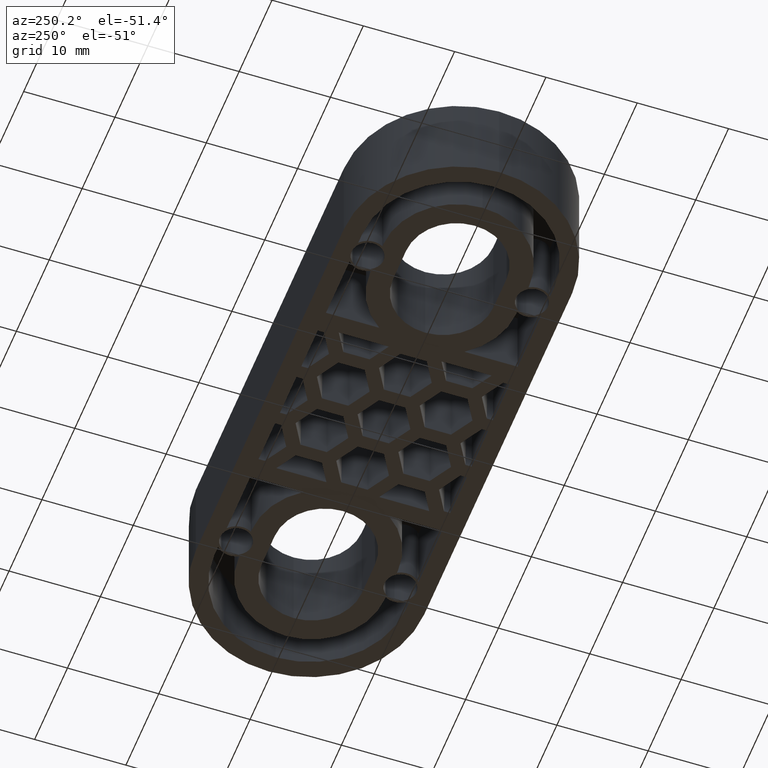
[diagram: clean part render]
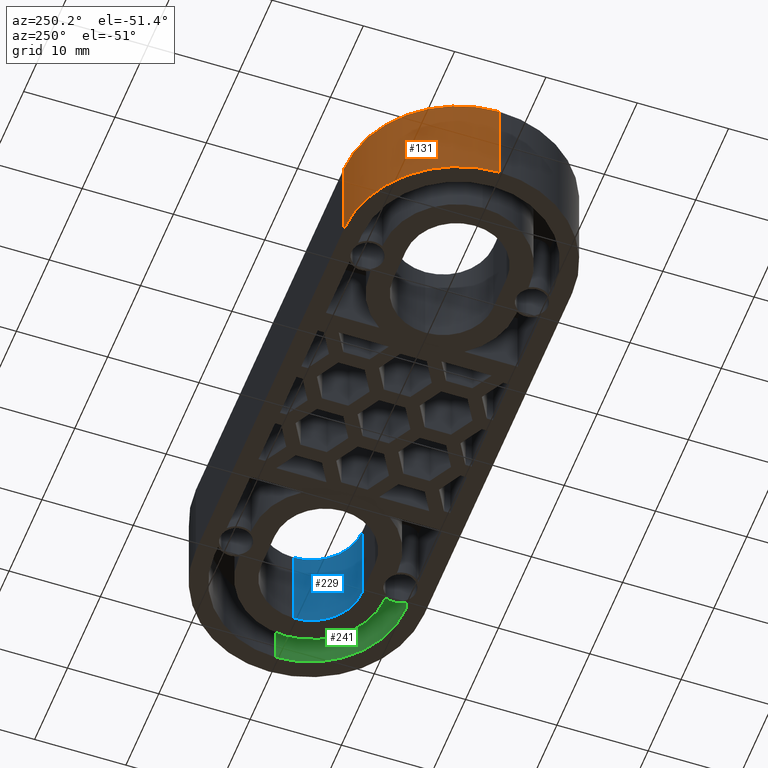
[diagram: same view with three faces highlighted in distinct colors, each labeled with its STEP entity id]
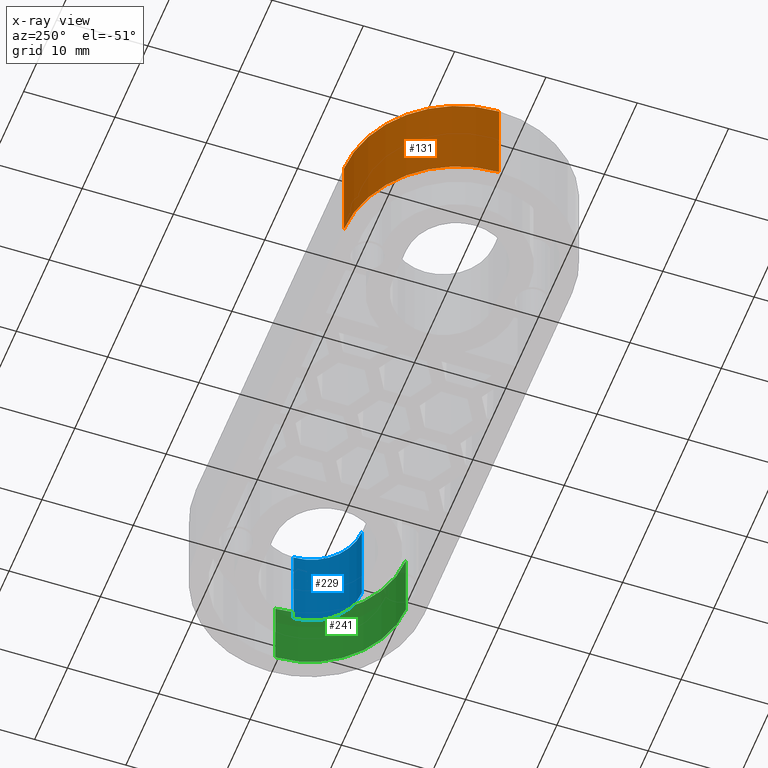
[diagram: x-ray of the same camera — body ghosted, the three highlighted faces saturated]
A machine part, auxiliary view with three faces highlighted in distinct colors.
The next image is the same camera in x-ray (body ghosted, the three faces saturated) — at least one of them is partly hidden behind the body in this view.
Their STEP definitions:

[orange] entity #131 — the highlighted cylindrical surface (partial cylindrical patch) has radius 12.5 mm, axis along (-0, -0, -1).
#131 = ADVANCED_FACE( '', ( #442 ), #443, .T. );
#442 = FACE_OUTER_BOUND( '', #918, .T. );
#443 = CYLINDRICAL_SURFACE( '', #919, 12.5000000000000 );
#918 = EDGE_LOOP( '', ( #1856, #1857, #1858, #1859 ) );
#919 = AXIS2_PLACEMENT_3D( '', #1860, #1861, #1862 );
#1856 = ORIENTED_EDGE( '', *, *, #2973, .T. );
#1857 = ORIENTED_EDGE( '', *, *, #3334, .F. );
#1858 = ORIENTED_EDGE( '', *, *, #3191, .F. );
#1859 = ORIENTED_EDGE( '', *, *, #3333, .T. );
#1860 = CARTESIAN_POINT( '', ( -23.2500000000000, 0.00254079757291536, -4.33053919918789E-016 ) );
#1861 = DIRECTION( '', ( -5.60519385729927E-049, -6.12303176911189E-017, -1.00000000000000 ) );
#1862 = DIRECTION( '', ( -1.00000000000000, -6.12303176911189E-017, 3.74915180455534E-033 ) );
#2973 = EDGE_CURVE( '', #3521, #3519, #3522, .T. );
#3191 = EDGE_CURVE( '', #3917, #3919, #3920, .T. );
#3333 = EDGE_CURVE( '', #3917, #3521, #4180, .T. );
#3334 = EDGE_CURVE( '', #3919, #3519, #4181, .T. );
#3519 = VERTEX_POINT( '', #4424 );
#3521 = VERTEX_POINT( '', #4427 );
#3522 = CIRCLE( '', #4428, 12.5000000000000 );
#3917 = VERTEX_POINT( '', #4974 );
#3919 = VERTEX_POINT( '', #4976 );
#3920 = CIRCLE( '', #4977, 12.5000000000000 );
#4180 = LINE( '', #5374, #5375 );
#4181 = LINE( '', #5376, #5377 );
#4424 = CARTESIAN_POINT( '', ( -23.2500000000000, 12.5025407975729, 9.99999999999999 ) );
#4427 = CARTESIAN_POINT( '', ( -35.7500000000000, 0.00254079757291276, 9.99999999999999 ) );
#4428 = AXIS2_PLACEMENT_3D( '', #5751, #5752, #5753 );
#4974 = CARTESIAN_POINT( '', ( -35.7500000000000, 0.00254079757291189, -4.33053919918789E-016 ) );
#4976 = CARTESIAN_POINT( '', ( -23.2500000000000, 12.5025407975729, -1.19843289105777E-015 ) );
#4977 = AXIS2_PLACEMENT_3D( '', #6103, #6104, #6105 );
#5374 = CARTESIAN_POINT( '', ( -35.7500000000000, 0.00254079757291189, -4.33053919918789E-016 ) );
#5375 = VECTOR( '', #6255, 1000.00000000000 );
#5376 = CARTESIAN_POINT( '', ( -23.2500000000000, 12.5025407975729, -1.19843289105777E-015 ) );
#5377 = VECTOR( '', #6256, 1000.00000000000 );
#5751 = CARTESIAN_POINT( '', ( -23.2500000000000, 0.00254079757291623, 9.99999999999999 ) );
#5752 = DIRECTION( '', ( -5.60519385729927E-049, -6.12303176911189E-017, -1.00000000000000 ) );
#5753 = DIRECTION( '', ( -6.12303176911189E-017, 1.00000000000000, -6.12303176911189E-017 ) );
#6103 = CARTESIAN_POINT( '', ( -23.2500000000000, 0.00254079757291536, -4.33053919918789E-016 ) );
#6104 = DIRECTION( '', ( -5.60519385729927E-049, -6.12303176911189E-017, -1.00000000000000 ) );
#6105 = DIRECTION( '', ( -6.12303176911189E-017, 1.00000000000000, -6.12303176911189E-017 ) );
#6255 = DIRECTION( '', ( 0.000000000000000, 6.12303176911189E-017, 1.00000000000000 ) );
#6256 = DIRECTION( '', ( 0.000000000000000, 6.12303176911189E-017, 1.00000000000000 ) );

[blue] entity #229 — the highlighted cylindrical surface (partial cylindrical patch) has radius 5.5 mm, axis along (-0, -0, -1).
#229 = ADVANCED_FACE( '', ( #640 ), #641, .F. );
#640 = FACE_OUTER_BOUND( '', #1116, .T. );
#641 = CYLINDRICAL_SURFACE( '', #1117, 5.50000000000000 );
#1116 = EDGE_LOOP( '', ( #2538, #2539, #2540, #2541 ) );
#1117 = AXIS2_PLACEMENT_3D( '', #2542, #2543, #2544 );
#2538 = ORIENTED_EDGE( '', *, *, #3430, .F. );
#2539 = ORIENTED_EDGE( '', *, *, #3235, .F. );
#2540 = ORIENTED_EDGE( '', *, *, #3434, .T. );
#2541 = ORIENTED_EDGE( '', *, *, #2987, .F. );
#2542 = CARTESIAN_POINT( '', ( 21.2500000000000, 0.00254079757291883, -9.99999999516950E-006 ) );
#2543 = DIRECTION( '', ( -1.44762238050085E-048, -6.12303176911189E-017, -1.00000000000000 ) );
#2544 = DIRECTION( '', ( -1.15648231731787E-016, 1.00000000000000, -6.12303176911189E-017 ) );
#2987 = EDGE_CURVE( '', #3547, #3549, #3550, .F. );
#3235 = EDGE_CURVE( '', #4006, #4007, #4008, .T. );
#3430 = EDGE_CURVE( '', #4007, #3547, #4297, .T. );
#3434 = EDGE_CURVE( '', #4006, #3549, #4301, .T. );
#3547 = VERTEX_POINT( '', #4457 );
#3549 = VERTEX_POINT( '', #4459 );
#3550 = CIRCLE( '', #4460, 5.50000000000000 );
#4006 = VERTEX_POINT( '', #5106 );
#4007 = VERTEX_POINT( '', #5107 );
#4008 = CIRCLE( '', #5108, 5.50000000000000 );
#4297 = LINE( '', #5586, #5587 );
#4301 = LINE( '', #5594, #5595 );
#4457 = CARTESIAN_POINT( '', ( 26.7500000000000, 0.00254079757291970, 9.99999999999999 ) );
#4459 = CARTESIAN_POINT( '', ( 21.2500000000000, -5.49745920242708, 9.99999999999999 ) );
#4460 = AXIS2_PLACEMENT_3D( '', #5785, #5786, #5787 );
#5106 = CARTESIAN_POINT( '', ( 21.2500000000000, -5.49745920242708, -9.99999999483273E-006 ) );
#5107 = CARTESIAN_POINT( '', ( 26.7500000000000, 0.00254079757291970, -9.99999999516950E-006 ) );
#5108 = AXIS2_PLACEMENT_3D( '', #6149, #6150, #6151 );
#5586 = CARTESIAN_POINT( '', ( 26.7500000000000, 0.00254079757291970, -9.99999999516950E-006 ) );
#5587 = VECTOR( '', #6356, 1000.00000000000 );
#5594 = CARTESIAN_POINT( '', ( 21.2500000000000, -5.49745920242708, -9.99999999483273E-006 ) );
#5595 = VECTOR( '', #6360, 1000.00000000000 );
#5785 = CARTESIAN_POINT( '', ( 21.2500000000000, 0.00254079757291970, 9.99999999999999 ) );
#5786 = DIRECTION( '', ( 0.000000000000000, 6.12303176911189E-017, 1.00000000000000 ) );
#5787 = DIRECTION( '', ( 0.000000000000000, -1.00000000000000, 6.12303176911189E-017 ) );
#6149 = CARTESIAN_POINT( '', ( 21.2500000000000, 0.00254079757291883, -9.99999999516950E-006 ) );
#6150 = DIRECTION( '', ( 0.000000000000000, 6.12303176911189E-017, 1.00000000000000 ) );
#6151 = DIRECTION( '', ( 1.15648231731787E-016, -1.00000000000000, 6.12303176911189E-017 ) );
#6356 = DIRECTION( '', ( 0.000000000000000, 6.12303176911189E-017, 1.00000000000000 ) );
#6360 = DIRECTION( '', ( 0.000000000000000, 6.12303176911189E-017, 1.00000000000000 ) );

[green] entity #241 — the highlighted cylindrical surface (partial cylindrical patch) has radius 10.5 mm, axis along (0, -0, -1).
#241 = ADVANCED_FACE( '', ( #664 ), #665, .F. );
#664 = FACE_OUTER_BOUND( '', #1140, .T. );
#665 = CYLINDRICAL_SURFACE( '', #1141, 10.5000000000000 );
#1140 = EDGE_LOOP( '', ( #2622, #2623, #2624, #2625 ) );
#1141 = AXIS2_PLACEMENT_3D( '', #2626, #2627, #2628 );
#2622 = ORIENTED_EDGE( '', *, *, #3045, .T. );
#2623 = ORIENTED_EDGE( '', *, *, #3033, .F. );
#2624 = ORIENTED_EDGE( '', *, *, #3440, .F. );
#2625 = ORIENTED_EDGE( '', *, *, #3116, .F. );
#2626 = CARTESIAN_POINT( '', ( 21.7500000000000, 0.00254079757291362, -7.99999999995808 ) );
#2627 = DIRECTION( '', ( 6.35509507630303E-048, -6.12303176911189E-017, -1.00000000000000 ) );
#2628 = DIRECTION( '', ( 1.00000000000000, -8.67361737988403E-016, 5.31088347701509E-032 ) );
#3033 = EDGE_CURVE( '', #3634, #3636, #3637, .T. );
#3045 = EDGE_CURVE( '', #3655, #3636, #3658, .T. );
#3116 = EDGE_CURVE( '', #3655, #3782, #3783, .F. );
#3440 = EDGE_CURVE( '', #3782, #3634, #4307, .T. );
#3634 = VERTEX_POINT( '', #4576 );
#3636 = VERTEX_POINT( '', #4578 );
#3637 = CIRCLE( '', #4579, 10.5000000000000 );
#3655 = VERTEX_POINT( '', #4604 );
#3658 = LINE( '', #4609, #4610 );
#3782 = VERTEX_POINT( '', #4787 );
#3783 = CIRCLE( '', #4788, 10.5000000000000 );
#4307 = LINE( '', #5606, #5607 );
#4576 = CARTESIAN_POINT( '', ( 32.2500000000000, 0.00254079757291796, 7.99999999999999 ) );
#4578 = CARTESIAN_POINT( '', ( 21.7500000000000, -10.4974592024271, 7.99999999999999 ) );
#4579 = AXIS2_PLACEMENT_3D( '', #5859, #5860, #5861 );
#4604 = CARTESIAN_POINT( '', ( 21.7500000000000, -10.4974592024271, 2.09864415837959E-016 ) );
#4609 = CARTESIAN_POINT( '', ( 21.7500000000000, -10.4974592024271, -7.99999999995808 ) );
#4610 = VECTOR( '', #5877, 1000.00000000000 );
#4787 = CARTESIAN_POINT( '', ( 32.2500000000000, 0.00254079757291709, -4.33053919918789E-016 ) );
#4788 = AXIS2_PLACEMENT_3D( '', #5982, #5983, #5984 );
#5606 = CARTESIAN_POINT( '', ( 32.2500000000000, 0.00254079757291623, -7.99999999995808 ) );
#5607 = VECTOR( '', #6366, 1000.00000000000 );
#5859 = CARTESIAN_POINT( '', ( 21.7500000000000, 0.00254079757291536, 7.99999999999999 ) );
#5860 = DIRECTION( '', ( 0.000000000000000, -6.12303176911189E-017, -1.00000000000000 ) );
#5861 = DIRECTION( '', ( -1.23908819712630E-016, 1.00000000000000, -6.12303176911189E-017 ) );
#5877 = DIRECTION( '', ( 0.000000000000000, 6.12303176911189E-017, 1.00000000000000 ) );
#5982 = CARTESIAN_POINT( '', ( 21.7500000000000, 0.00254079757291449, -4.33053919918789E-016 ) );
#5983 = DIRECTION( '', ( 0.000000000000000, -6.12303176911189E-017, -1.00000000000000 ) );
#5984 = DIRECTION( '', ( 0.000000000000000, 1.00000000000000, -6.12303176911189E-017 ) );
#6366 = DIRECTION( '', ( 0.000000000000000, 6.12303176911189E-017, 1.00000000000000 ) );